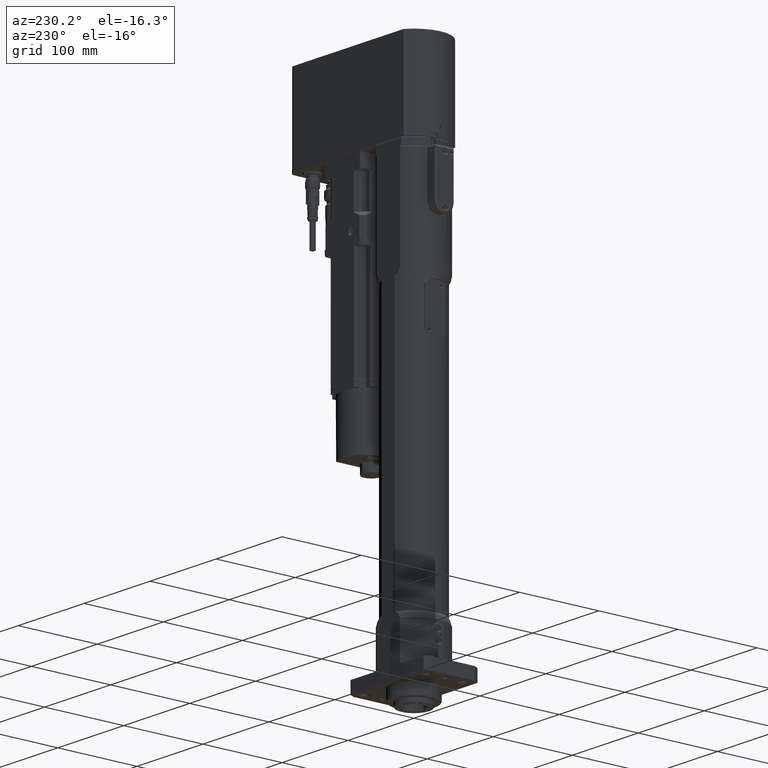
[diagram: clean part render]
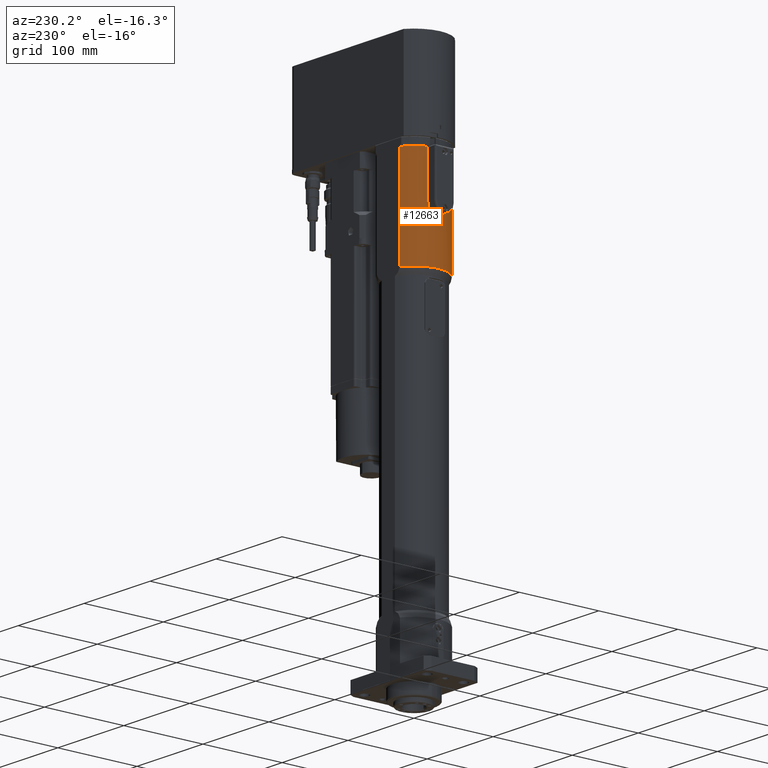
[diagram: same view with one face highlighted and labeled with its STEP entity id]
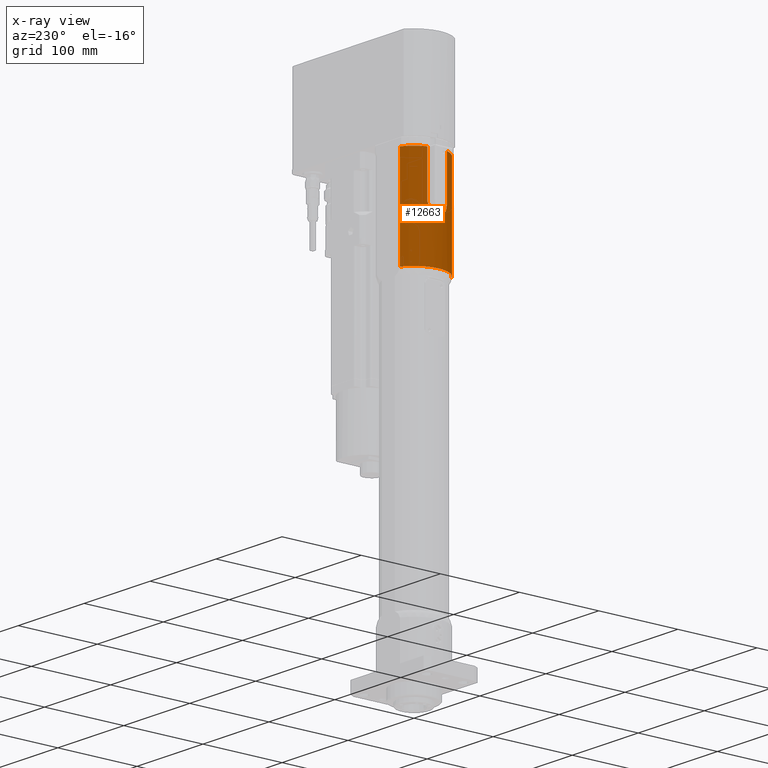
[diagram: x-ray of the same camera — body ghosted, the highlighted face saturated]
A machine part, auxiliary view. The second image highlights one B-rep face of the part: STEP entity #12663.
The next image is the same camera in x-ray: the body ghosted, the highlighted face saturated — about 0% of this face is hidden behind the body in this view.
In plain terms, the highlighted cylindrical surface (partial cylindrical patch) has radius 37 mm, axis along (-0, 0, 1).
Its self-contained STEP definition (entity closure, byte-faithful):
#959=LINE('',#23697,#1895);
#962=LINE('',#23702,#1898);
#1014=LINE('',#23884,#1950);
#1015=LINE('',#23885,#1951);
#1895=VECTOR('',#17229,55.5);
#1898=VECTOR('',#17234,55.5000000000001);
#1950=VECTOR('',#17416,121.624355652982);
#1951=VECTOR('',#17417,121.624355652982);
#2267=B_SPLINE_CURVE_WITH_KNOTS('',3,(#23706,#23707,#23708,#23709,#23710,
#23711,#23712,#23713,#23714,#23715,#23716,#23717,#23718,#23719,#23720,#23721,
#23722,#23723),.UNSPECIFIED.,.F.,.F.,(4,2,2,2,2,2,2,2,4),(-7.41326903037022,
-6.9498370673098,-6.48640510424939,-6.02317843851352,-5.55995177277766,
-5.0967251070418,-4.63349844130594,-4.17006647824552,-3.70663451518511),
 .UNSPECIFIED.);
#3446=FACE_OUTER_BOUND('',#4361,.T.);
#4361=EDGE_LOOP('',(#10809,#10810,#10811,#10812,#10813,#10814,#10815,#10816));
#5037=CIRCLE('',#13971,37.);
#5038=CIRCLE('',#13973,37.);
#5064=CIRCLE('',#14044,37.);
#6107=VERTEX_POINT('',#23649);
#6110=VERTEX_POINT('',#23656);
#6112=VERTEX_POINT('',#23663);
#6113=VERTEX_POINT('',#23667);
#6125=VERTEX_POINT('',#23696);
#6126=VERTEX_POINT('',#23701);
#6172=VERTEX_POINT('',#23881);
#6173=VERTEX_POINT('',#23882);
#7698=EDGE_CURVE('',#6110,#6107,#5037,.T.);
#7700=EDGE_CURVE('',#6112,#6113,#5038,.T.);
#7713=EDGE_CURVE('',#6112,#6125,#959,.T.);
#7716=EDGE_CURVE('',#6126,#6107,#962,.T.);
#7719=EDGE_CURVE('',#6125,#6126,#2267,.F.);
#7791=EDGE_CURVE('',#6172,#6173,#5064,.T.);
#7792=EDGE_CURVE('',#6172,#6113,#1014,.T.);
#7793=EDGE_CURVE('',#6110,#6173,#1015,.T.);
#10809=ORIENTED_EDGE('',*,*,#7791,.F.);
#10810=ORIENTED_EDGE('',*,*,#7792,.T.);
#10811=ORIENTED_EDGE('',*,*,#7700,.F.);
#10812=ORIENTED_EDGE('',*,*,#7713,.T.);
#10813=ORIENTED_EDGE('',*,*,#7719,.T.);
#10814=ORIENTED_EDGE('',*,*,#7716,.T.);
#10815=ORIENTED_EDGE('',*,*,#7698,.F.);
#10816=ORIENTED_EDGE('',*,*,#7793,.T.);
#11706=CYLINDRICAL_SURFACE('',#14043,37.);
#12663=ADVANCED_FACE('',(#3446),#11706,.T.);
#13971=AXIS2_PLACEMENT_3D('',#23660,#17205,#17206);
#13973=AXIS2_PLACEMENT_3D('',#23668,#17209,#17210);
#14043=AXIS2_PLACEMENT_3D('',#23880,#17412,#17413);
#14044=AXIS2_PLACEMENT_3D('',#23883,#17414,#17415);
#17205=DIRECTION('center_axis',(0.,0.,1.));
#17206=DIRECTION('ref_axis',(-1.,0.,0.));
#17209=DIRECTION('center_axis',(0.,0.,1.));
#17210=DIRECTION('ref_axis',(-1.,0.,0.));
#17229=DIRECTION('',(0.,0.,-1.));
#17234=DIRECTION('',(0.,0.,1.));
#17412=DIRECTION('center_axis',(0.,0.,1.));
#17413=DIRECTION('ref_axis',(-1.,0.,0.));
#17414=DIRECTION('center_axis',(0.,0.,-1.));
#17415=DIRECTION('ref_axis',(1.,-1.01064309961486E-15,0.));
#17416=DIRECTION('',(0.,0.,1.));
#17417=DIRECTION('',(0.,0.,-1.));
#23649=CARTESIAN_POINT('',(34.9307887113933,-12.2,452.5));
#23656=CARTESIAN_POINT('',(17.6847391838273,-32.5,452.5));
#23660=CARTESIAN_POINT('Origin',(0.,0.,452.5));
#23663=CARTESIAN_POINT('',(34.9307887113933,12.2,452.5));
#23667=CARTESIAN_POINT('',(17.6847391838274,32.5,452.5));
#23668=CARTESIAN_POINT('Origin',(0.,0.,452.5));
#23696=CARTESIAN_POINT('',(34.9307887113933,12.2,397.));
#23697=CARTESIAN_POINT('',(34.9307887113933,12.2,323.));
#23701=CARTESIAN_POINT('',(34.9307887113933,-12.2,397.));
#23702=CARTESIAN_POINT('',(34.9307887113933,-12.2,323.));
#23706=CARTESIAN_POINT('Ctrl Pts',(34.9307887113933,-12.2,397.));
#23707=CARTESIAN_POINT('Ctrl Pts',(34.9307887113933,-12.2,395.455226789799));
#23708=CARTESIAN_POINT('Ctrl Pts',(35.0440232256835,-11.8888984553166,393.81619332937));
#23709=CARTESIAN_POINT('Ctrl Pts',(35.4430555449694,-10.6404540959668,390.814267001039));
#23710=CARTESIAN_POINT('Ctrl Pts',(35.722060213249,-9.70365462164042,389.450249160689));
#23711=CARTESIAN_POINT('Ctrl Pts',(36.2383701454753,-7.55022792194603,387.296822460994));
#23712=CARTESIAN_POINT('Ctrl Pts',(36.5105988899115,-6.18601962236677,386.359655453351));
#23713=CARTESIAN_POINT('Ctrl Pts',(36.8938573090573,-3.18338858379374,385.110937322615));
#23714=CARTESIAN_POINT('Ctrl Pts',(37.,-1.54408888578621,384.8));
#23715=CARTESIAN_POINT('Ctrl Pts',(37.,1.5440888857862,384.8));
#23716=CARTESIAN_POINT('Ctrl Pts',(36.8938573090573,3.18338858379372,385.110937322615));
#23717=CARTESIAN_POINT('Ctrl Pts',(36.5105988899115,6.18601962236675,386.359655453351));
#23718=CARTESIAN_POINT('Ctrl Pts',(36.2383701454753,7.55022792194601,387.296822460994));
#23719=CARTESIAN_POINT('Ctrl Pts',(35.722060213249,9.70365462164041,389.450249160689));
#23720=CARTESIAN_POINT('Ctrl Pts',(35.4430555449694,10.6404540959668,390.814267001039));
#23721=CARTESIAN_POINT('Ctrl Pts',(35.0440232256835,11.8888984553166,393.81619332937));
#23722=CARTESIAN_POINT('Ctrl Pts',(34.9307887113933,12.2,395.455226789799));
#23723=CARTESIAN_POINT('Ctrl Pts',(34.9307887113933,12.2,397.));
#23880=CARTESIAN_POINT('Origin',(0.,0.,323.));
#23881=CARTESIAN_POINT('',(17.6847391838274,32.5,330.875644347018));
#23882=CARTESIAN_POINT('',(17.6847391838274,-32.5,330.875644347018));
#23883=CARTESIAN_POINT('Origin',(0.,0.,330.875644347018));
#23884=CARTESIAN_POINT('',(17.6847391838274,32.5,323.));
#23885=CARTESIAN_POINT('',(17.6847391838274,-32.5,323.));